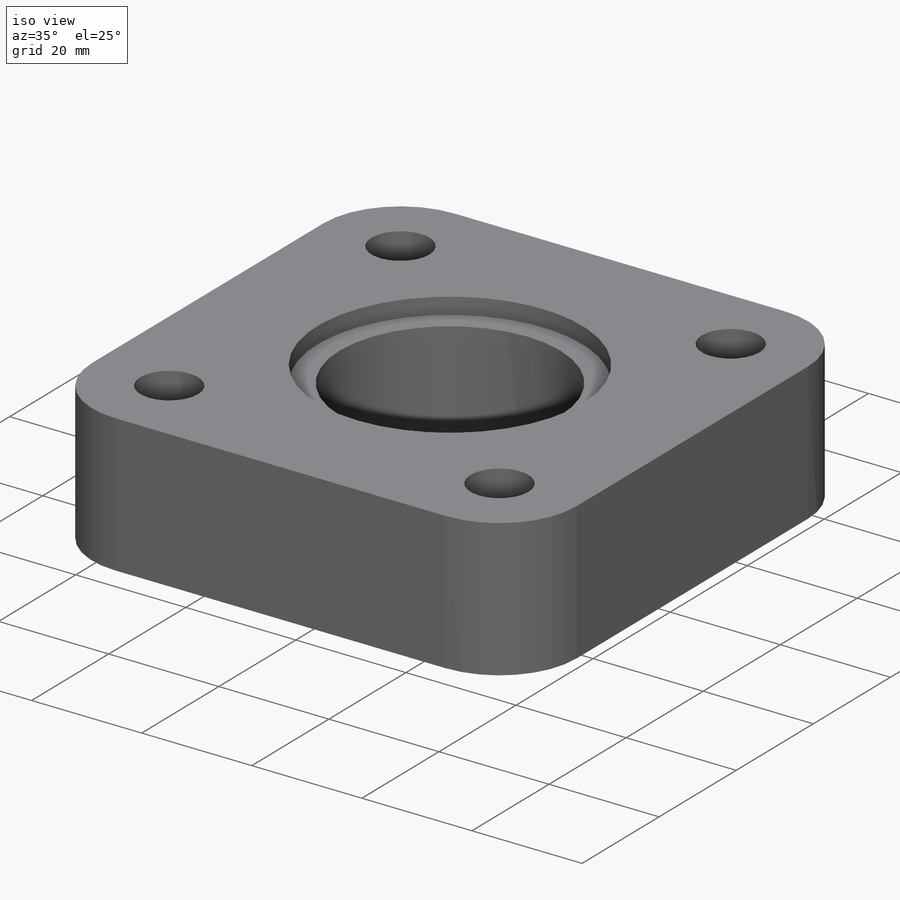
[diagram: iso view]
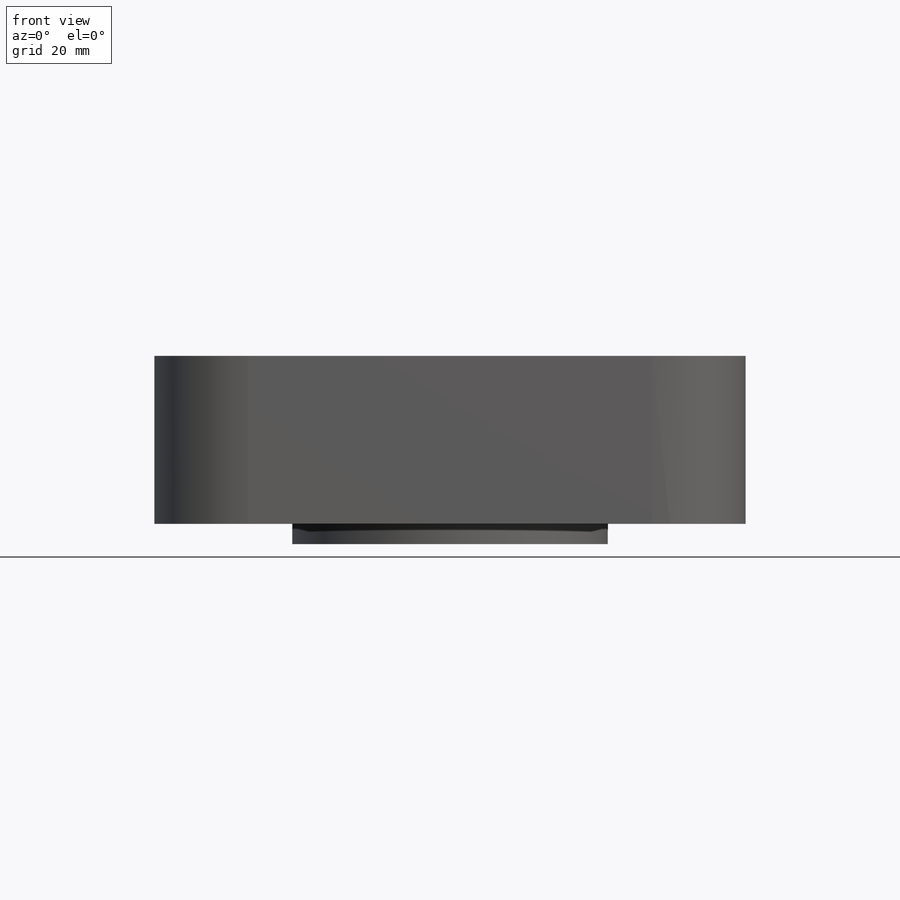
[diagram: front view]
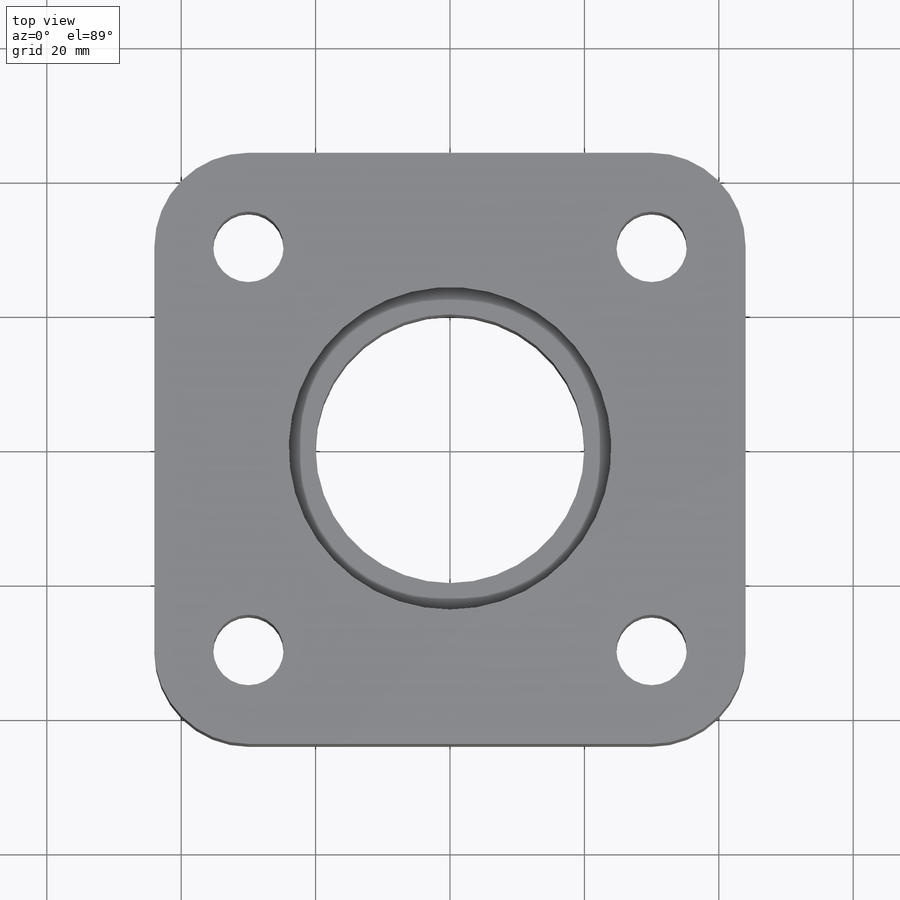
[diagram: top view]
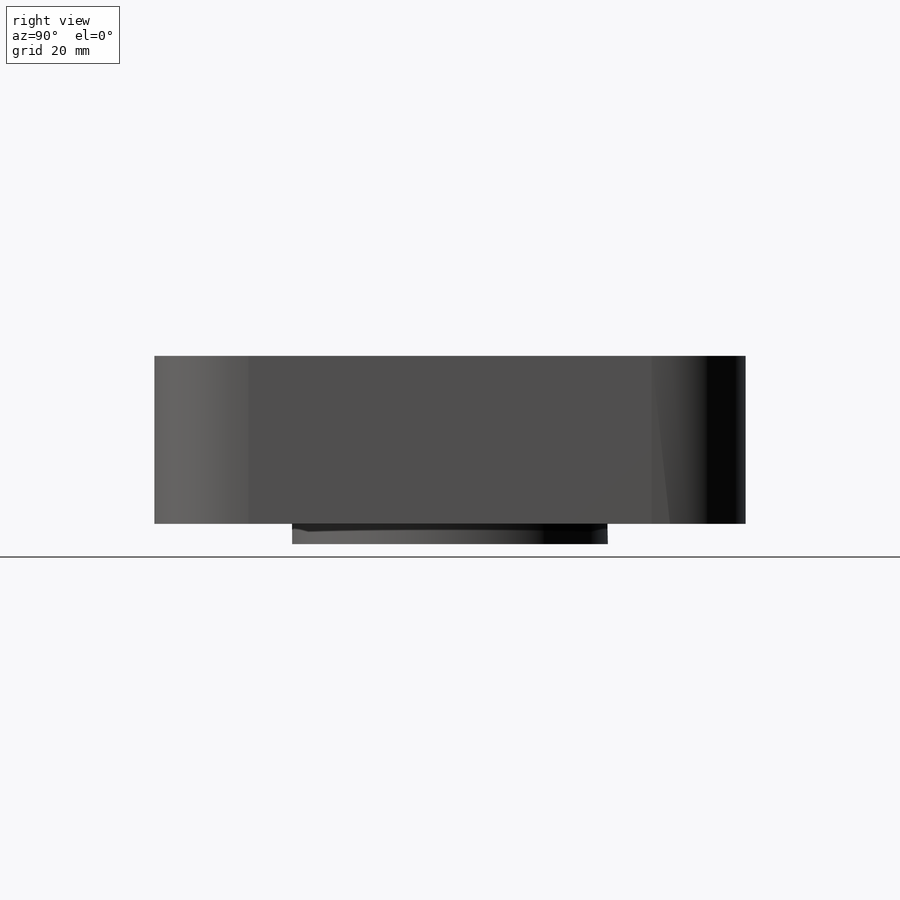
[diagram: right view]
SOLIDWORKS PART (.sldprt)
format: sldprt  version: not decoded by parser v0  size: 177,152 bytes
history: native  units: mm
features: plane x3, sketch x3, extrude x2, material x1, cut_extrude x1 (+10 scaffold rows collapsed)
feature tree (20):
  scaffold x10  (default folders/planes/origin — collapsed)
  material  "Matériau <non spécifié>"
  plane  "Plan de face"
  plane  "Plan de dessus"
  plane  "Plan de droite"
  sketch  "Esquisse1"  dims[c1.D3=14.0mm c1.D4=10.0mm c1.D5=10.5mm c1.D6=40.0mm c1.D1=60.0mm c1.D2=80.0mm c2.D2=90.0deg c3.D2=60.0mm]
  extrude  "Boss.-Extru.1"  Depth=25mm
  sketch  "Esquisse2"  dims[D1=48.0mm]
  cut_extrude  "Enlèv. mat.-Extru.1"  Depth=3mm
  sketch  "Esquisse3"  dims[D1=47.0mm]
  extrude  "Boss.-Extru.2"  Depth=3mm
decode coverage: 6 of 6 modeling features carry decoded parameters
note: suppression state not decoded; provenance and decode notes live in map.json
